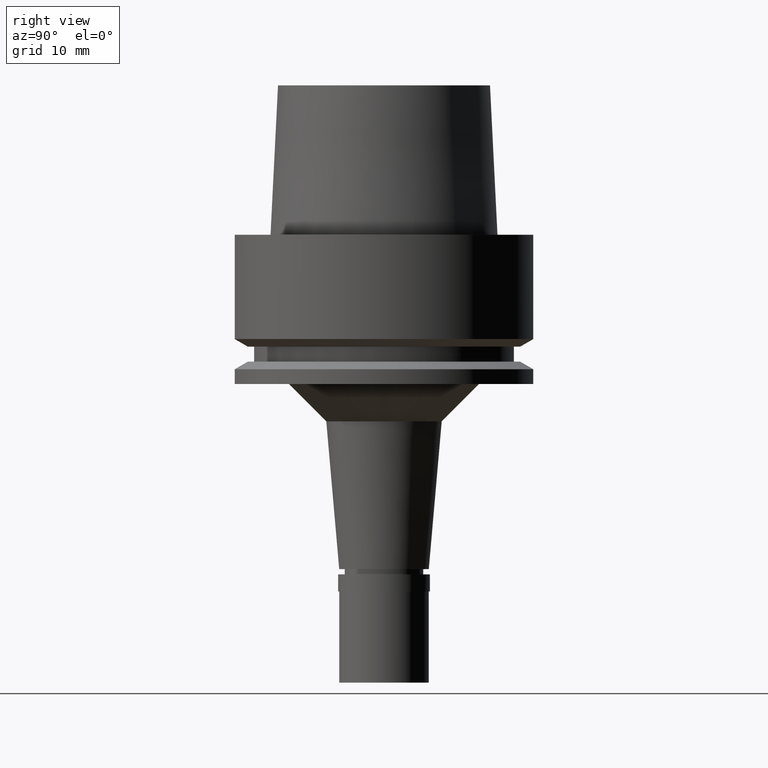
[diagram: clean part render]
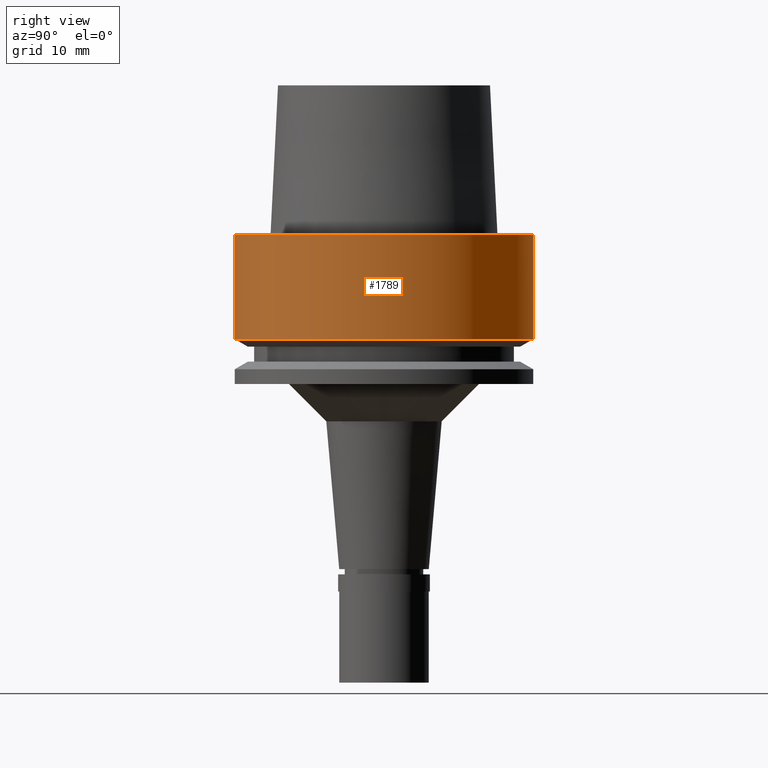
[diagram: same view with one face highlighted and labeled with its STEP entity id]
A machine part, right view. The second image highlights one B-rep face of the part: STEP entity #1789.
In plain terms, the highlighted cylindrical surface (partial cylindrical patch) has radius 20 mm, axis along (0, 0, 1).
Its self-contained STEP definition (entity closure, byte-faithful):
#31 = CARTESIAN_POINT ( 'NONE',  ( 0.0000000000000000000, 20.00000000000000000, 2.842170943039999687E-14 ) ) ;
#59 = DIRECTION ( 'NONE',  ( 0.0000000000000000000, -1.000000000000000000, 0.0000000000000000000 ) ) ;
#121 = VECTOR ( 'NONE', #741, 1000.000000000000000 ) ;
#219 = VERTEX_POINT ( 'NONE', #2569 ) ;
#260 = CARTESIAN_POINT ( 'NONE',  ( 0.0000000000000000000, -20.00000000000000000, 4.973799150320999175E-14 ) ) ;
#655 = DIRECTION ( 'NONE',  ( 0.0000000000000000000, 1.000000000000000000, 0.0000000000000000000 ) ) ;
#741 = DIRECTION ( 'NONE',  ( 0.0000000000000000000, -2.439758400998999725E-14, -1.000000000000000000 ) ) ;
#774 = VERTEX_POINT ( 'NONE', #1694 ) ;
#862 = FACE_OUTER_BOUND ( 'NONE', #1959, .T. ) ;
#868 = ORIENTED_EDGE ( 'NONE', *, *, #1779, .F. ) ;
#933 = CIRCLE ( 'NONE', #1193, 20.00000000000000000 ) ;
#1078 = VECTOR ( 'NONE', #2328, 1000.000000000000000 ) ;
#1118 = AXIS2_PLACEMENT_3D ( 'NONE', #1288, #1890, #2117 ) ;
#1193 = AXIS2_PLACEMENT_3D ( 'NONE', #2538, #1334, #59 ) ;
#1268 = VERTEX_POINT ( 'NONE', #260 ) ;
#1288 = CARTESIAN_POINT ( 'NONE',  ( 0.0000000000000000000, 0.0000000000000000000, 4.973799150320999175E-14 ) ) ;
#1322 = ORIENTED_EDGE ( 'NONE', *, *, #1861, .T. ) ;
#1334 = DIRECTION ( 'NONE',  ( 0.0000000000000000000, 0.0000000000000000000, 1.000000000000000000 ) ) ;
#1440 = EDGE_CURVE ( 'NONE', #1268, #774, #1781, .T. ) ;
#1463 = CIRCLE ( 'NONE', #1118, 20.00000000000000000 ) ;
#1510 = CARTESIAN_POINT ( 'NONE',  ( 0.0000000000000000000, 0.0000000000000000000, -59.79999999999999716 ) ) ;
#1627 = ORIENTED_EDGE ( 'NONE', *, *, #2189, .T. ) ;
#1694 = CARTESIAN_POINT ( 'NONE',  ( 0.0000000000000000000, -20.00000000000000000, -13.97927405538000123 ) ) ;
#1729 = CYLINDRICAL_SURFACE ( 'NONE', #1777, 20.00000000000000000 ) ;
#1733 = ORIENTED_EDGE ( 'NONE', *, *, #1440, .T. ) ;
#1777 = AXIS2_PLACEMENT_3D ( 'NONE', #1510, #1878, #655 ) ;
#1779 = EDGE_CURVE ( 'NONE', #219, #2359, #2541, .T. ) ;
#1781 = LINE ( 'NONE', #2423, #121 ) ;
#1789 = ADVANCED_FACE ( 'NONE', ( #862 ), #1729, .T. ) ;
#1829 = CARTESIAN_POINT ( 'NONE',  ( 0.0000000000000000000, 20.00000000000000000, -13.97927405538000123 ) ) ;
#1861 = EDGE_CURVE ( 'NONE', #219, #1268, #1463, .T. ) ;
#1878 = DIRECTION ( 'NONE',  ( 0.0000000000000000000, 0.0000000000000000000, 1.000000000000000000 ) ) ;
#1890 = DIRECTION ( 'NONE',  ( 0.0000000000000000000, 0.0000000000000000000, -1.000000000000000000 ) ) ;
#1959 = EDGE_LOOP ( 'NONE', ( #1322, #1733, #1627, #868 ) ) ;
#2117 = DIRECTION ( 'NONE',  ( 0.0000000000000000000, 1.000000000000000000, 0.0000000000000000000 ) ) ;
#2189 = EDGE_CURVE ( 'NONE', #774, #2359, #933, .T. ) ;
#2328 = DIRECTION ( 'NONE',  ( 0.0000000000000000000, 2.439758400998999725E-14, -1.000000000000000000 ) ) ;
#2359 = VERTEX_POINT ( 'NONE', #1829 ) ;
#2423 = CARTESIAN_POINT ( 'NONE',  ( 0.0000000000000000000, -20.00000000000000000, 2.842170943039999687E-14 ) ) ;
#2538 = CARTESIAN_POINT ( 'NONE',  ( 0.0000000000000000000, 0.0000000000000000000, -13.97927405538000123 ) ) ;
#2541 = LINE ( 'NONE', #31, #1078 ) ;
#2569 = CARTESIAN_POINT ( 'NONE',  ( 0.0000000000000000000, 20.00000000000000000, 4.973799150320999175E-14 ) ) ;